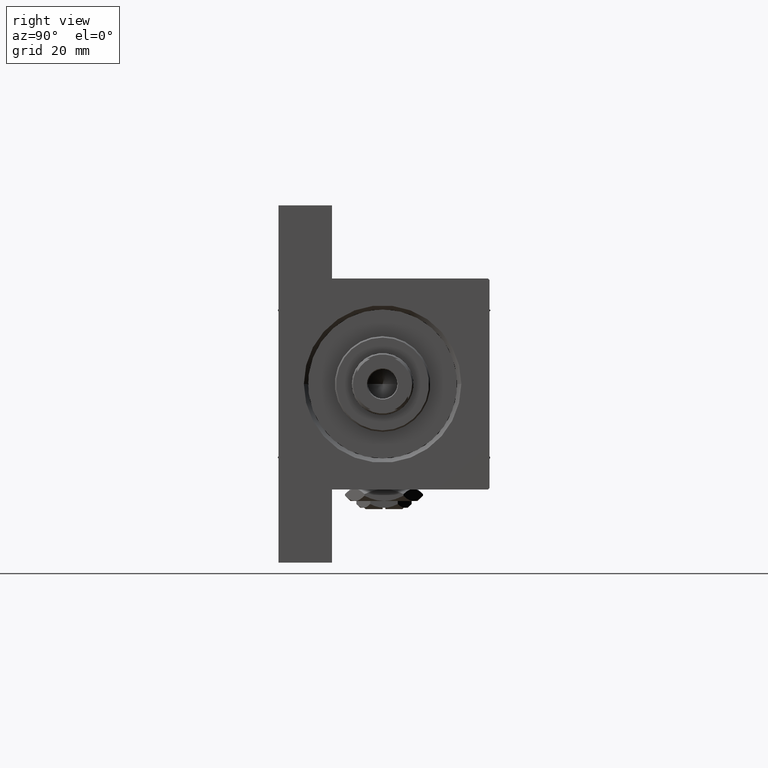
[diagram: clean part render]
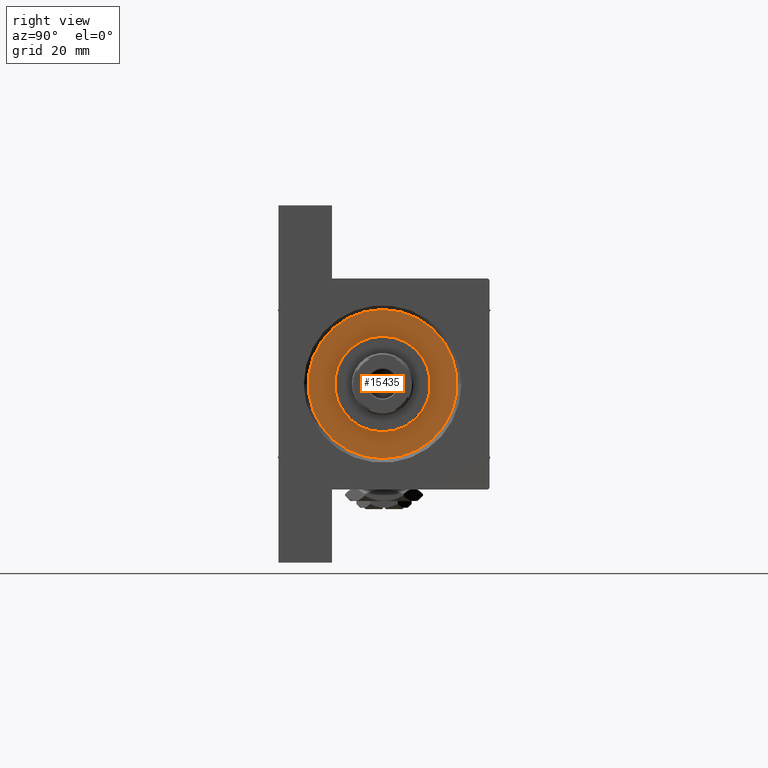
[diagram: same view with one face highlighted and labeled with its STEP entity id]
A machine part, right view. The second image highlights one B-rep face of the part: STEP entity #15435.
In plain terms, the highlighted planar face has unit normal (1, 0, 0).
Its self-contained STEP definition (entity closure, byte-faithful):
#1168 = CARTESIAN_POINT ( 'NONE',  ( -17.00000000000000000, 0.000000000000000000, 28.69999999999999929 ) ) ;
#1824 = ORIENTED_EDGE ( 'NONE', *, *, #39475, .F. ) ;
#2468 = DIRECTION ( 'NONE',  ( 0.000000000000000000, 0.000000000000000000, 1.000000000000000000 ) ) ;
#4939 = EDGE_CURVE ( 'NONE', #22255, #11732, #41823, .T. ) ;
#6214 = FACE_BOUND ( 'NONE', #39210, .T. ) ;
#7681 = AXIS2_PLACEMENT_3D ( 'NONE', #17915, #32163, #28906 ) ;
#8614 = ORIENTED_EDGE ( 'NONE', *, *, #44281, .T. ) ;
#9441 = CARTESIAN_POINT ( 'NONE',  ( 0.000000000000000000, 0.000000000000000000, 28.69999999999999929 ) ) ;
#9624 = DIRECTION ( 'NONE',  ( 1.000000000000000000, 0.000000000000000000, 0.000000000000000000 ) ) ;
#11732 = VERTEX_POINT ( 'NONE', #43101 ) ;
#13208 = FACE_OUTER_BOUND ( 'NONE', #33522, .T. ) ;
#13792 = CIRCLE ( 'NONE', #41611, 26.50000000000000355 ) ;
#13947 = CARTESIAN_POINT ( 'NONE',  ( 0.000000000000000000, 0.000000000000000000, 28.69999999999999929 ) ) ;
#15435 = ADVANCED_FACE ( 'NONE', ( #6214, #13208 ), #32886, .T. ) ;
#16157 = VERTEX_POINT ( 'NONE', #28417 ) ;
#17915 = CARTESIAN_POINT ( 'NONE',  ( 0.000000000000000000, 0.000000000000000000, 28.69999999999999929 ) ) ;
#19739 = EDGE_CURVE ( 'NONE', #16157, #20755, #45320, .T. ) ;
#20755 = VERTEX_POINT ( 'NONE', #1168 ) ;
#22255 = VERTEX_POINT ( 'NONE', #45168 ) ;
#22305 = CARTESIAN_POINT ( 'NONE',  ( 0.000000000000000000, 0.000000000000000000, 28.69999999999999929 ) ) ;
#28417 = CARTESIAN_POINT ( 'NONE',  ( 17.00000000000000000, 2.081899558550500280E-15, 28.69999999999999929 ) ) ;
#28906 = DIRECTION ( 'NONE',  ( 1.000000000000000000, 0.000000000000000000, 0.000000000000000000 ) ) ;
#29542 = DIRECTION ( 'NONE',  ( 0.000000000000000000, 0.000000000000000000, 1.000000000000000000 ) ) ;
#29558 = CARTESIAN_POINT ( 'NONE',  ( 0.000000000000000000, 0.000000000000000000, 28.69999999999999929 ) ) ;
#30278 = DIRECTION ( 'NONE',  ( 1.000000000000000000, 0.000000000000000000, 0.000000000000000000 ) ) ;
#30980 = ORIENTED_EDGE ( 'NONE', *, *, #19739, .F. ) ;
#32163 = DIRECTION ( 'NONE',  ( 0.000000000000000000, 0.000000000000000000, 1.000000000000000000 ) ) ;
#32886 = PLANE ( 'NONE',  #39644 ) ;
#33522 = EDGE_LOOP ( 'NONE', ( #8614, #41672 ) ) ;
#38661 = AXIS2_PLACEMENT_3D ( 'NONE', #29558, #47712, #9624 ) ;
#39210 = EDGE_LOOP ( 'NONE', ( #1824, #30980 ) ) ;
#39475 = EDGE_CURVE ( 'NONE', #20755, #16157, #43449, .T. ) ;
#39644 = AXIS2_PLACEMENT_3D ( 'NONE', #13947, #2468, #40338 ) ;
#40338 = DIRECTION ( 'NONE',  ( 1.000000000000000000, 0.000000000000000000, -0.000000000000000000 ) ) ;
#41611 = AXIS2_PLACEMENT_3D ( 'NONE', #22305, #29542, #30278 ) ;
#41672 = ORIENTED_EDGE ( 'NONE', *, *, #4939, .T. ) ;
#41823 = CIRCLE ( 'NONE', #38661, 26.50000000000000355 ) ;
#43101 = CARTESIAN_POINT ( 'NONE',  ( -26.50000000000000355, 0.000000000000000000, 28.69999999999999929 ) ) ;
#43449 = CIRCLE ( 'NONE', #7681, 17.00000000000000000 ) ;
#43771 = AXIS2_PLACEMENT_3D ( 'NONE', #9441, #44055, #48266 ) ;
#44055 = DIRECTION ( 'NONE',  ( 0.000000000000000000, 0.000000000000000000, 1.000000000000000000 ) ) ;
#44281 = EDGE_CURVE ( 'NONE', #11732, #22255, #13792, .T. ) ;
#45168 = CARTESIAN_POINT ( 'NONE',  ( 26.50000000000000355, 3.245314017740486554E-15, 28.69999999999999929 ) ) ;
#45320 = CIRCLE ( 'NONE', #43771, 17.00000000000000000 ) ;
#47712 = DIRECTION ( 'NONE',  ( 0.000000000000000000, 0.000000000000000000, 1.000000000000000000 ) ) ;
#48266 = DIRECTION ( 'NONE',  ( 1.000000000000000000, 0.000000000000000000, 0.000000000000000000 ) ) ;